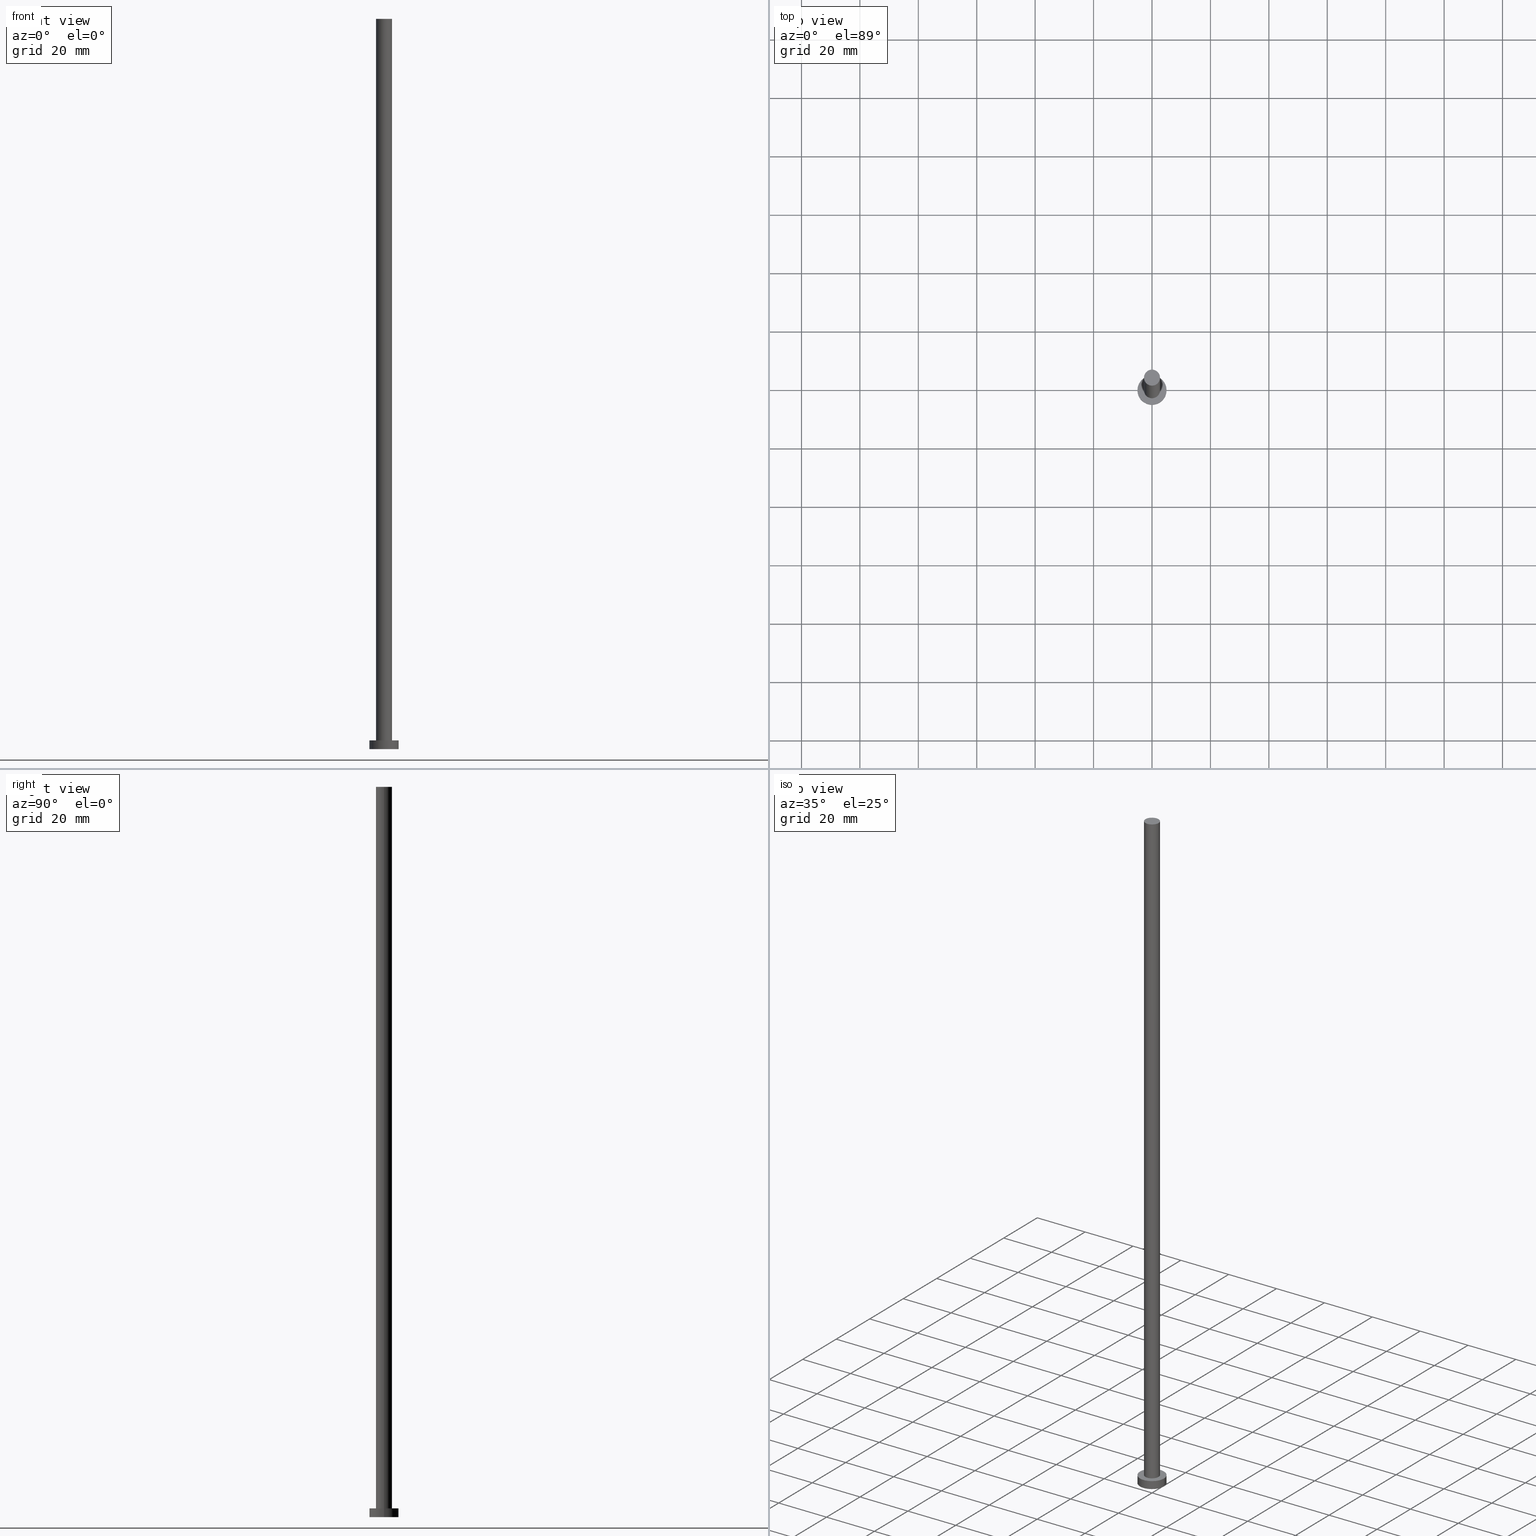
[diagram: canonical four-view strip — front | top / right | iso, engineering-drawing reading convention]
A machine part, canonical four-view strip (front | top / right | iso — engineering-drawing reading convention). The complete STEP part file that produces these views, byte-faithful:
ISO-10303-21;
HEADER;
FILE_DESCRIPTION (( 'STEP AP203' ),
    '1' );
FILE_NAME ('222b.STEP',
    '2023-02-13T15:23:48',
    ( '' ),
    ( '' ),
    'SwSTEP 2.0',
    'SolidWorks 2019',
    '' );
FILE_SCHEMA (( 'CONFIG_CONTROL_DESIGN' ));
ENDSEC;

DATA;
#1 = AXIS2_PLACEMENT_3D ( 'NONE', #10, #208, #35 ) ;
#2 = PERSON ( 'NEUR�EN�', 'NEUR�EN�', 'NEUR�EN�', ('NEUR�EN�'), ('NEUR�EN�'), ('NEUR�EN�') ) ;
#3 = CC_DESIGN_DATE_AND_TIME_ASSIGNMENT ( #167, #229, ( #134 ) ) ;
#4 = CC_DESIGN_APPROVAL ( #238, ( #53 ) ) ;
#5 = PRODUCT_RELATED_PRODUCT_CATEGORY ( 'detail', '', ( #240 ) ) ;
#6 = VERTEX_POINT ( 'NONE', #94 ) ;
#7 = APPROVAL_DATE_TIME ( #50, #238 ) ;
#8 = EDGE_LOOP ( 'NONE', ( #44, #85 ) ) ;
#9 = LINE ( 'NONE', #87, #181 ) ;
#10 = CARTESIAN_POINT ( 'NONE',  ( 0.000000000000000000, 0.000000000000000000, 3.000000000000000000 ) ) ;
#11 =( GEOMETRIC_REPRESENTATION_CONTEXT ( 3 ) GLOBAL_UNCERTAINTY_ASSIGNED_CONTEXT ( ( #82 ) ) GLOBAL_UNIT_ASSIGNED_CONTEXT ( ( #222, #162, #60 ) ) REPRESENTATION_CONTEXT ( 'NONE', 'WORKASPACE' ) );
#12 = CARTESIAN_POINT ( 'NONE',  ( 0.000000000000000000, 0.000000000000000000, 0.000000000000000000 ) ) ;
#13 = CARTESIAN_POINT ( 'NONE',  ( 0.000000000000000000, 0.000000000000000000, 3.000000000000000000 ) ) ;
#14 = ADVANCED_BREP_SHAPE_REPRESENTATION ( '222b', ( #116, #142 ), #11 ) ;
#15 = CIRCLE ( 'NONE', #45, 5.000000000000000000 ) ;
#16 = ORIENTED_EDGE ( 'NONE', *, *, #203, .F. ) ;
#17 = AXIS2_PLACEMENT_3D ( 'NONE', #18, #249, #96 ) ;
#18 = CARTESIAN_POINT ( 'NONE',  ( 0.000000000000000000, 0.000000000000000000, 250.0000000000000000 ) ) ;
#19 = COORDINATED_UNIVERSAL_TIME_OFFSET ( 1, 0, .AHEAD. ) ;
#20 = PERSON_AND_ORGANIZATION_ROLE ( 'design_owner' ) ;
#21 = AXIS2_PLACEMENT_3D ( 'NONE', #119, #210, #178 ) ;
#22 = LOCAL_TIME ( 16, 23, 48.00000000000000000, #57 ) ;
#23 = VERTEX_POINT ( 'NONE', #230 ) ;
#24 = CALENDAR_DATE ( 2023, 13, 2 ) ;
#25 = EDGE_CURVE ( 'NONE', #6, #245, #81, .T. ) ;
#26 = CC_DESIGN_PERSON_AND_ORGANIZATION_ASSIGNMENT ( #68, #31, ( #53 ) ) ;
#27 = EDGE_LOOP ( 'NONE', ( #16, #183 ) ) ;
#28 = PERSON_AND_ORGANIZATION ( #2, #199 ) ;
#29 = EDGE_CURVE ( 'NONE', #65, #202, #225, .T. ) ;
#30 = CARTESIAN_POINT ( 'NONE',  ( -2.750000000000000000, 0.000000000000000000, 250.0000000000000000 ) ) ;
#31 = PERSON_AND_ORGANIZATION_ROLE ( 'creator' ) ;
#32 = ORIENTED_EDGE ( 'NONE', *, *, #153, .F. ) ;
#33 = EDGE_LOOP ( 'NONE', ( #248, #32, #72, #77 ) ) ;
#34 = LOCAL_TIME ( 16, 23, 48.00000000000000000, #47 ) ;
#35 = DIRECTION ( 'NONE',  ( 1.000000000000000000, 0.000000000000000000, 0.000000000000000000 ) ) ;
#36 = ORIENTED_EDGE ( 'NONE', *, *, #228, .T. ) ;
#37 = CARTESIAN_POINT ( 'NONE',  ( 0.000000000000000000, 0.000000000000000000, 0.000000000000000000 ) ) ;
#38 = ORIENTED_EDGE ( 'NONE', *, *, #70, .T. ) ;
#39 = DIRECTION ( 'NONE',  ( 0.000000000000000000, 0.000000000000000000, 1.000000000000000000 ) ) ;
#40 = DIRECTION ( 'NONE',  ( 1.000000000000000000, 0.000000000000000000, 0.000000000000000000 ) ) ;
#41 = LINE ( 'NONE', #118, #163 ) ;
#42 = APPROVAL_PERSON_ORGANIZATION ( #176, #126, #159 ) ;
#43 = CARTESIAN_POINT ( 'NONE',  ( 0.000000000000000000, 0.000000000000000000, 0.000000000000000000 ) ) ;
#44 = ORIENTED_EDGE ( 'NONE', *, *, #139, .F. ) ;
#45 = AXIS2_PLACEMENT_3D ( 'NONE', #12, #39, #91 ) ;
#46 = DIRECTION ( 'NONE',  ( 0.000000000000000000, 0.000000000000000000, 1.000000000000000000 ) ) ;
#47 = COORDINATED_UNIVERSAL_TIME_OFFSET ( 1, 0, .AHEAD. ) ;
#48 = APPROVAL_PERSON_ORGANIZATION ( #242, #83, #148 ) ;
#49 = ORIENTED_EDGE ( 'NONE', *, *, #213, .T. ) ;
#50 = DATE_AND_TIME ( #174, #120 ) ;
#51 = DIRECTION ( 'NONE',  ( -1.000000000000000000, 0.000000000000000000, 0.000000000000000000 ) ) ;
#52 = PERSON_AND_ORGANIZATION_ROLE ( 'design_supplier' ) ;
#53 = PRODUCT_DEFINITION_FORMATION_WITH_SPECIFIED_SOURCE ( 'LIBOVOLN�', '', #240, .NOT_KNOWN. ) ;
#54 = EDGE_LOOP ( 'NONE', ( #170, #103, #124, #110 ) ) ;
#55 = DIRECTION ( 'NONE',  ( 0.000000000000000000, 0.000000000000000000, 1.000000000000000000 ) ) ;
#56 = VECTOR ( 'NONE', #125, 1000.000000000000000 ) ;
#57 = COORDINATED_UNIVERSAL_TIME_OFFSET ( 1, 0, .AHEAD. ) ;
#58 = ADVANCED_FACE ( 'NONE', ( #89 ), #90, .T. ) ;
#59 = CIRCLE ( 'NONE', #17, 2.750000000000000000 ) ;
#60 =( NAMED_UNIT ( * ) SI_UNIT ( $, .STERADIAN. ) SOLID_ANGLE_UNIT ( ) );
#61 = CARTESIAN_POINT ( 'NONE',  ( 0.000000000000000000, 0.000000000000000000, 250.0000000000000000 ) ) ;
#62 = VERTEX_POINT ( 'NONE', #30 ) ;
#63 = ORIENTED_EDGE ( 'NONE', *, *, #243, .T. ) ;
#64 = PERSON_AND_ORGANIZATION ( #2, #199 ) ;
#65 = VERTEX_POINT ( 'NONE', #188 ) ;
#66 = AXIS2_PLACEMENT_3D ( 'NONE', #69, #219, #122 ) ;
#67 = FACE_BOUND ( 'NONE', #27, .T. ) ;
#68 = PERSON_AND_ORGANIZATION ( #2, #199 ) ;
#69 = CARTESIAN_POINT ( 'NONE',  ( 0.000000000000000000, 0.000000000000000000, 3.000000000000000000 ) ) ;
#70 = EDGE_CURVE ( 'NONE', #93, #6, #9, .T. ) ;
#71 = SECURITY_CLASSIFICATION_LEVEL ( 'unclassified' ) ;
#72 = ORIENTED_EDGE ( 'NONE', *, *, #147, .T. ) ;
#73 = CLOSED_SHELL ( 'NONE', ( #186, #205, #78, #252, #84, #192, #58 ) ) ;
#74 = VECTOR ( 'NONE', #145, 1000.000000000000000 ) ;
#75 = CARTESIAN_POINT ( 'NONE',  ( 0.000000000000000000, 0.000000000000000000, 3.000000000000000000 ) ) ;
#76 = APPLICATION_CONTEXT ( 'configuration controlled 3d designs of mechanical parts and assemblies' ) ;
#77 = ORIENTED_EDGE ( 'NONE', *, *, #139, .T. ) ;
#78 = ADVANCED_FACE ( 'NONE', ( #233 ), #253, .T. ) ;
#79 = APPROVAL_DATE_TIME ( #218, #126 ) ;
#80 = PERSON_AND_ORGANIZATION_ROLE ( 'creator' ) ;
#81 = CIRCLE ( 'NONE', #111, 2.750000000000000000 ) ;
#82 = UNCERTAINTY_MEASURE_WITH_UNIT (LENGTH_MEASURE( 1.000000000000000082E-05 ), #222, 'distance_accuracy_value', 'NONE');
#83 = APPROVAL ( #239, 'NEUR�EN�' ) ;
#84 = ADVANCED_FACE ( 'NONE', ( #232 ), #211, .F. ) ;
#85 = ORIENTED_EDGE ( 'NONE', *, *, #213, .F. ) ;
#86 = AXIS2_PLACEMENT_3D ( 'NONE', #201, #194, #237 ) ;
#87 = CARTESIAN_POINT ( 'NONE',  ( 2.750000000000000000, 3.367778697655221012E-16, 250.0000000000000000 ) ) ;
#88 = PERSON_AND_ORGANIZATION ( #2, #199 ) ;
#89 = FACE_OUTER_BOUND ( 'NONE', #136, .T. ) ;
#90 = PLANE ( 'NONE',  #221 ) ;
#91 = DIRECTION ( 'NONE',  ( 1.000000000000000000, 0.000000000000000000, 0.000000000000000000 ) ) ;
#92 = DIRECTION ( 'NONE',  ( -1.000000000000000000, 0.000000000000000000, 0.000000000000000000 ) ) ;
#93 = VERTEX_POINT ( 'NONE', #157 ) ;
#94 = CARTESIAN_POINT ( 'NONE',  ( 2.750000000000000000, 3.367778697655221012E-16, 3.000000000000000000 ) ) ;
#95 = DIRECTION ( 'NONE',  ( 1.000000000000000000, 0.000000000000000000, 0.000000000000000000 ) ) ;
#96 = DIRECTION ( 'NONE',  ( 1.000000000000000000, 0.000000000000000000, 0.000000000000000000 ) ) ;
#97 = CARTESIAN_POINT ( 'NONE',  ( 0.000000000000000000, 0.000000000000000000, 3.000000000000000000 ) ) ;
#98 = CARTESIAN_POINT ( 'NONE',  ( -2.750000000000000000, 0.000000000000000000, 3.000000000000000000 ) ) ;
#99 = AXIS2_PLACEMENT_3D ( 'NONE', #37, #175, #250 ) ;
#100 = LINE ( 'NONE', #149, #56 ) ;
#101 = CC_DESIGN_PERSON_AND_ORGANIZATION_ASSIGNMENT ( #180, #20, ( #240 ) ) ;
#102 = DIRECTION ( 'NONE',  ( 1.000000000000000000, 0.000000000000000000, 0.000000000000000000 ) ) ;
#103 = ORIENTED_EDGE ( 'NONE', *, *, #243, .F. ) ;
#104 = DATE_AND_TIME ( #24, #231 ) ;
#105 = APPROVAL_DATE_TIME ( #104, #83 ) ;
#106 = ORIENTED_EDGE ( 'NONE', *, *, #220, .F. ) ;
#107 = EDGE_LOOP ( 'NONE', ( #152, #38, #200, #106 ) ) ;
#108 = DIRECTION ( 'NONE',  ( 1.000000000000000000, 0.000000000000000000, -0.000000000000000000 ) ) ;
#109 = PERSON_AND_ORGANIZATION_ROLE ( 'classification_officer' ) ;
#110 = ORIENTED_EDGE ( 'NONE', *, *, #203, .T. ) ;
#111 = AXIS2_PLACEMENT_3D ( 'NONE', #138, #177, #189 ) ;
#112 = DATE_AND_TIME ( #206, #241 ) ;
#113 = DIRECTION ( 'NONE',  ( -0.000000000000000000, -0.000000000000000000, -1.000000000000000000 ) ) ;
#114 = CARTESIAN_POINT ( 'NONE',  ( 0.000000000000000000, 0.000000000000000000, 250.0000000000000000 ) ) ;
#115 = ORIENTED_EDGE ( 'NONE', *, *, #123, .T. ) ;
#116 = MANIFOLD_SOLID_BREP ( 'P�idat vysunut�m3', #73 ) ;
#117 = DIRECTION ( 'NONE',  ( -0.000000000000000000, -0.000000000000000000, -1.000000000000000000 ) ) ;
#118 = CARTESIAN_POINT ( 'NONE',  ( 5.000000000000000000, 6.123233995736766282E-16, 3.000000000000000000 ) ) ;
#119 = CARTESIAN_POINT ( 'NONE',  ( 0.000000000000000000, 0.000000000000000000, 0.000000000000000000 ) ) ;
#120 = LOCAL_TIME ( 16, 23, 48.00000000000000000, #204 ) ;
#121 = APPLICATION_CONTEXT ( 'configuration controlled 3d designs of mechanical parts and assemblies' ) ;
#122 = DIRECTION ( 'NONE',  ( 1.000000000000000000, 0.000000000000000000, -0.000000000000000000 ) ) ;
#123 = EDGE_CURVE ( 'NONE', #93, #62, #247, .T. ) ;
#124 = ORIENTED_EDGE ( 'NONE', *, *, #220, .T. ) ;
#125 = DIRECTION ( 'NONE',  ( -0.000000000000000000, -0.000000000000000000, -1.000000000000000000 ) ) ;
#126 = APPROVAL ( #158, 'NEUR�EN�' ) ;
#127 = DIRECTION ( 'NONE',  ( 0.000000000000000000, 0.000000000000000000, 1.000000000000000000 ) ) ;
#128 = EDGE_LOOP ( 'NONE', ( #187, #168 ) ) ;
#129 = APPROVAL_STATUS ( 'not_yet_approved' ) ;
#130 = AXIS2_PLACEMENT_3D ( 'NONE', #165, #150, #223 ) ;
#131 = CALENDAR_DATE ( 2023, 13, 2 ) ;
#132 = DESIGN_CONTEXT ( 'detailed design', #76, 'design' ) ;
#133 = FACE_OUTER_BOUND ( 'NONE', #54, .T. ) ;
#134 = PRODUCT_DEFINITION ( 'NEZN�M�', '', #53, #132 ) ;
#135 = COORDINATED_UNIVERSAL_TIME_OFFSET ( 1, 0, .AHEAD. ) ;
#136 = EDGE_LOOP ( 'NONE', ( #63, #115 ) ) ;
#137 = DATE_TIME_ROLE ( 'classification_date' ) ;
#138 = CARTESIAN_POINT ( 'NONE',  ( 0.000000000000000000, 0.000000000000000000, 3.000000000000000000 ) ) ;
#139 = EDGE_CURVE ( 'NONE', #246, #23, #141, .T. ) ;
#140 = CARTESIAN_POINT ( 'NONE',  ( 0.000000000000000000, 0.000000000000000000, 250.0000000000000000 ) ) ;
#141 = CIRCLE ( 'NONE', #21, 5.000000000000000000 ) ;
#142 = AXIS2_PLACEMENT_3D ( 'NONE', #43, #127, #102 ) ;
#143 = SHAPE_DEFINITION_REPRESENTATION ( #197, #14 ) ;
#144 = PLANE ( 'NONE',  #66 ) ;
#145 = DIRECTION ( 'NONE',  ( -0.000000000000000000, -0.000000000000000000, -1.000000000000000000 ) ) ;
#146 = FACE_OUTER_BOUND ( 'NONE', #107, .T. ) ;
#147 = EDGE_CURVE ( 'NONE', #202, #246, #100, .T. ) ;
#148 = APPROVAL_ROLE ( '' ) ;
#149 = CARTESIAN_POINT ( 'NONE',  ( -5.000000000000000000, 0.000000000000000000, 3.000000000000000000 ) ) ;
#150 = DIRECTION ( 'NONE',  ( -0.000000000000000000, -0.000000000000000000, -1.000000000000000000 ) ) ;
#151 = APPROVAL_ROLE ( '' ) ;
#152 = ORIENTED_EDGE ( 'NONE', *, *, #123, .F. ) ;
#153 = EDGE_CURVE ( 'NONE', #202, #65, #198, .T. ) ;
#154 = FACE_OUTER_BOUND ( 'NONE', #128, .T. ) ;
#155 = EDGE_LOOP ( 'NONE', ( #224, #36, #49, #226 ) ) ;
#156 = SECURITY_CLASSIFICATION ( '', '', #71 ) ;
#157 = CARTESIAN_POINT ( 'NONE',  ( 2.750000000000000000, 3.367778697655221012E-16, 250.0000000000000000 ) ) ;
#158 = APPROVAL_STATUS ( 'not_yet_approved' ) ;
#159 = APPROVAL_ROLE ( '' ) ;
#160 = CC_DESIGN_SECURITY_CLASSIFICATION ( #156, ( #53 ) ) ;
#161 = CC_DESIGN_PERSON_AND_ORGANIZATION_ASSIGNMENT ( #28, #109, ( #156 ) ) ;
#162 =( NAMED_UNIT ( * ) PLANE_ANGLE_UNIT ( ) SI_UNIT ( $, .RADIAN. ) );
#163 = VECTOR ( 'NONE', #173, 1000.000000000000000 ) ;
#164 = APPLICATION_PROTOCOL_DEFINITION ( 'international standard', 'config_control_design', 1994, #121 ) ;
#165 = CARTESIAN_POINT ( 'NONE',  ( 0.000000000000000000, 0.000000000000000000, 250.0000000000000000 ) ) ;
#166 = CC_DESIGN_APPROVAL ( #83, ( #134 ) ) ;
#167 = DATE_AND_TIME ( #131, #34 ) ;
#168 = ORIENTED_EDGE ( 'NONE', *, *, #29, .T. ) ;
#169 = AXIS2_PLACEMENT_3D ( 'NONE', #114, #55, #95 ) ;
#170 = ORIENTED_EDGE ( 'NONE', *, *, #70, .F. ) ;
#171 = CIRCLE ( 'NONE', #244, 2.750000000000000000 ) ;
#172 = CC_DESIGN_PERSON_AND_ORGANIZATION_ASSIGNMENT ( #88, #52, ( #53 ) ) ;
#173 = DIRECTION ( 'NONE',  ( -0.000000000000000000, -0.000000000000000000, -1.000000000000000000 ) ) ;
#174 = CALENDAR_DATE ( 2023, 13, 2 ) ;
#175 = DIRECTION ( 'NONE',  ( 0.000000000000000000, 0.000000000000000000, 1.000000000000000000 ) ) ;
#176 = PERSON_AND_ORGANIZATION ( #2, #199 ) ;
#177 = DIRECTION ( 'NONE',  ( 0.000000000000000000, 0.000000000000000000, 1.000000000000000000 ) ) ;
#178 = DIRECTION ( 'NONE',  ( 1.000000000000000000, 0.000000000000000000, 0.000000000000000000 ) ) ;
#179 = CARTESIAN_POINT ( 'NONE',  ( -5.000000000000000000, 0.000000000000000000, 0.000000000000000000 ) ) ;
#180 = PERSON_AND_ORGANIZATION ( #2, #199 ) ;
#181 = VECTOR ( 'NONE', #117, 1000.000000000000000 ) ;
#182 = APPLICATION_PROTOCOL_DEFINITION ( 'international standard', 'config_control_design', 1994, #76 ) ;
#183 = ORIENTED_EDGE ( 'NONE', *, *, #25, .F. ) ;
#184 = CYLINDRICAL_SURFACE ( 'NONE', #130, 2.750000000000000000 ) ;
#185 = CC_DESIGN_APPROVAL ( #126, ( #156 ) ) ;
#186 = ADVANCED_FACE ( 'NONE', ( #146 ), #195, .T. ) ;
#187 = ORIENTED_EDGE ( 'NONE', *, *, #153, .T. ) ;
#188 = CARTESIAN_POINT ( 'NONE',  ( 5.000000000000000000, 6.123233995736766282E-16, 3.000000000000000000 ) ) ;
#189 = DIRECTION ( 'NONE',  ( 1.000000000000000000, 0.000000000000000000, 0.000000000000000000 ) ) ;
#190 = DIRECTION ( 'NONE',  ( -0.000000000000000000, -0.000000000000000000, -1.000000000000000000 ) ) ;
#191 = APPROVAL_PERSON_ORGANIZATION ( #64, #238, #151 ) ;
#192 = ADVANCED_FACE ( 'NONE', ( #133 ), #184, .T. ) ;
#193 = FACE_OUTER_BOUND ( 'NONE', #155, .T. ) ;
#194 = DIRECTION ( 'NONE',  ( 0.000000000000000000, 0.000000000000000000, 1.000000000000000000 ) ) ;
#195 = CYLINDRICAL_SURFACE ( 'NONE', #251, 2.750000000000000000 ) ;
#196 = MECHANICAL_CONTEXT ( 'NONE', #121, 'mechanical' ) ;
#197 = PRODUCT_DEFINITION_SHAPE ( 'NONE', 'NONE',  #134 ) ;
#198 = CIRCLE ( 'NONE', #86, 5.000000000000000000 ) ;
#200 = ORIENTED_EDGE ( 'NONE', *, *, #25, .T. ) ;
#199 = ORGANIZATION ( 'NEUR�EN�', 'NEUR�EN�', '' ) ;
#201 = CARTESIAN_POINT ( 'NONE',  ( 0.000000000000000000, 0.000000000000000000, 3.000000000000000000 ) ) ;
#202 = VERTEX_POINT ( 'NONE', #209 ) ;
#203 = EDGE_CURVE ( 'NONE', #245, #6, #171, .T. ) ;
#204 = COORDINATED_UNIVERSAL_TIME_OFFSET ( 1, 0, .AHEAD. ) ;
#205 = ADVANCED_FACE ( 'NONE', ( #193 ), #227, .T. ) ;
#206 = CALENDAR_DATE ( 2023, 13, 2 ) ;
#207 = AXIS2_PLACEMENT_3D ( 'NONE', #97, #113, #234 ) ;
#208 = DIRECTION ( 'NONE',  ( 0.000000000000000000, 0.000000000000000000, 1.000000000000000000 ) ) ;
#209 = CARTESIAN_POINT ( 'NONE',  ( -5.000000000000000000, 0.000000000000000000, 3.000000000000000000 ) ) ;
#210 = DIRECTION ( 'NONE',  ( 0.000000000000000000, 0.000000000000000000, 1.000000000000000000 ) ) ;
#211 = PLANE ( 'NONE',  #99 ) ;
#212 = AXIS2_PLACEMENT_3D ( 'NONE', #75, #217, #92 ) ;
#213 = EDGE_CURVE ( 'NONE', #23, #246, #15, .T. ) ;
#214 = CALENDAR_DATE ( 2023, 13, 2 ) ;
#215 = CARTESIAN_POINT ( 'NONE',  ( -2.750000000000000000, 0.000000000000000000, 250.0000000000000000 ) ) ;
#216 = CC_DESIGN_DATE_AND_TIME_ASSIGNMENT ( #112, #137, ( #156 ) ) ;
#217 = DIRECTION ( 'NONE',  ( -0.000000000000000000, -0.000000000000000000, -1.000000000000000000 ) ) ;
#218 = DATE_AND_TIME ( #214, #22 ) ;
#219 = DIRECTION ( 'NONE',  ( 0.000000000000000000, 0.000000000000000000, 1.000000000000000000 ) ) ;
#220 = EDGE_CURVE ( 'NONE', #62, #245, #254, .T. ) ;
#221 = AXIS2_PLACEMENT_3D ( 'NONE', #61, #46, #108 ) ;
#222 =( LENGTH_UNIT ( ) NAMED_UNIT ( * ) SI_UNIT ( .MILLI., .METRE. ) );
#223 = DIRECTION ( 'NONE',  ( -1.000000000000000000, 0.000000000000000000, 0.000000000000000000 ) ) ;
#224 = ORIENTED_EDGE ( 'NONE', *, *, #29, .F. ) ;
#225 = CIRCLE ( 'NONE', #1, 5.000000000000000000 ) ;
#226 = ORIENTED_EDGE ( 'NONE', *, *, #147, .F. ) ;
#227 = CYLINDRICAL_SURFACE ( 'NONE', #207, 5.000000000000000000 ) ;
#228 = EDGE_CURVE ( 'NONE', #65, #23, #41, .T. ) ;
#229 = DATE_TIME_ROLE ( 'creation_date' ) ;
#230 = CARTESIAN_POINT ( 'NONE',  ( 5.000000000000000000, 6.123233995736766282E-16, 0.000000000000000000 ) ) ;
#231 = LOCAL_TIME ( 16, 23, 48.00000000000000000, #19 ) ;
#232 = FACE_OUTER_BOUND ( 'NONE', #8, .T. ) ;
#233 = FACE_OUTER_BOUND ( 'NONE', #33, .T. ) ;
#234 = DIRECTION ( 'NONE',  ( -1.000000000000000000, 0.000000000000000000, 0.000000000000000000 ) ) ;
#235 = DIRECTION ( 'NONE',  ( 0.000000000000000000, 0.000000000000000000, 1.000000000000000000 ) ) ;
#236 = CC_DESIGN_PERSON_AND_ORGANIZATION_ASSIGNMENT ( #255, #80, ( #134 ) ) ;
#237 = DIRECTION ( 'NONE',  ( 1.000000000000000000, 0.000000000000000000, 0.000000000000000000 ) ) ;
#238 = APPROVAL ( #129, 'NEUR�EN�' ) ;
#239 = APPROVAL_STATUS ( 'not_yet_approved' ) ;
#240 = PRODUCT ( '222b', '222b', '', ( #196 ) ) ;
#241 = LOCAL_TIME ( 16, 23, 48.00000000000000000, #135 ) ;
#242 = PERSON_AND_ORGANIZATION ( #2, #199 ) ;
#243 = EDGE_CURVE ( 'NONE', #62, #93, #59, .T. ) ;
#244 = AXIS2_PLACEMENT_3D ( 'NONE', #13, #235, #40 ) ;
#245 = VERTEX_POINT ( 'NONE', #98 ) ;
#246 = VERTEX_POINT ( 'NONE', #179 ) ;
#247 = CIRCLE ( 'NONE', #169, 2.750000000000000000 ) ;
#248 = ORIENTED_EDGE ( 'NONE', *, *, #228, .F. ) ;
#249 = DIRECTION ( 'NONE',  ( 0.000000000000000000, 0.000000000000000000, 1.000000000000000000 ) ) ;
#250 = DIRECTION ( 'NONE',  ( 1.000000000000000000, 0.000000000000000000, -0.000000000000000000 ) ) ;
#251 = AXIS2_PLACEMENT_3D ( 'NONE', #140, #190, #51 ) ;
#252 = ADVANCED_FACE ( 'NONE', ( #67, #154 ), #144, .T. ) ;
#253 = CYLINDRICAL_SURFACE ( 'NONE', #212, 5.000000000000000000 ) ;
#254 = LINE ( 'NONE', #215, #74 ) ;
#255 = PERSON_AND_ORGANIZATION ( #2, #199 ) ;
ENDSEC;
END-ISO-10303-21;
